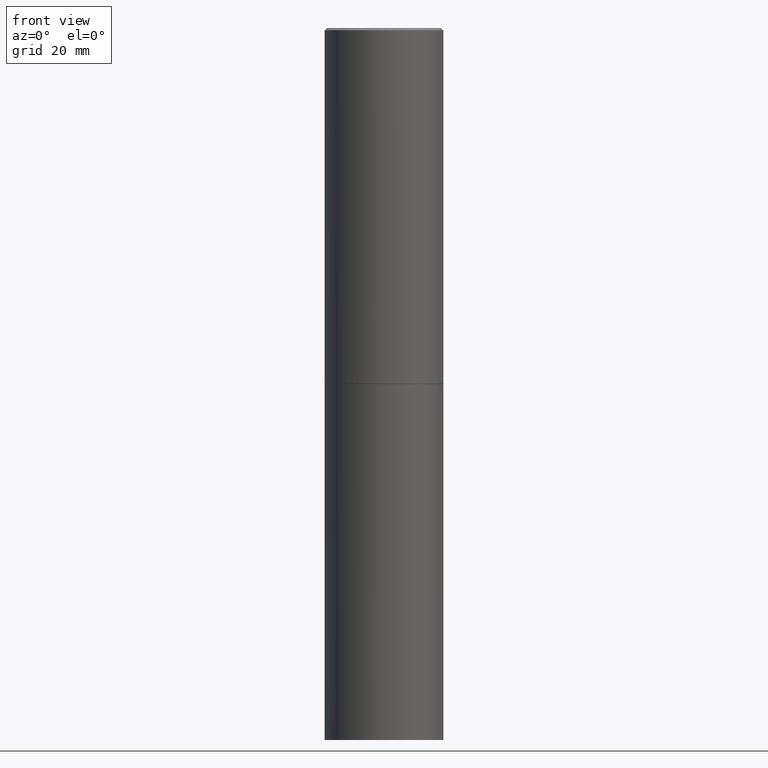
[diagram: clean part render]
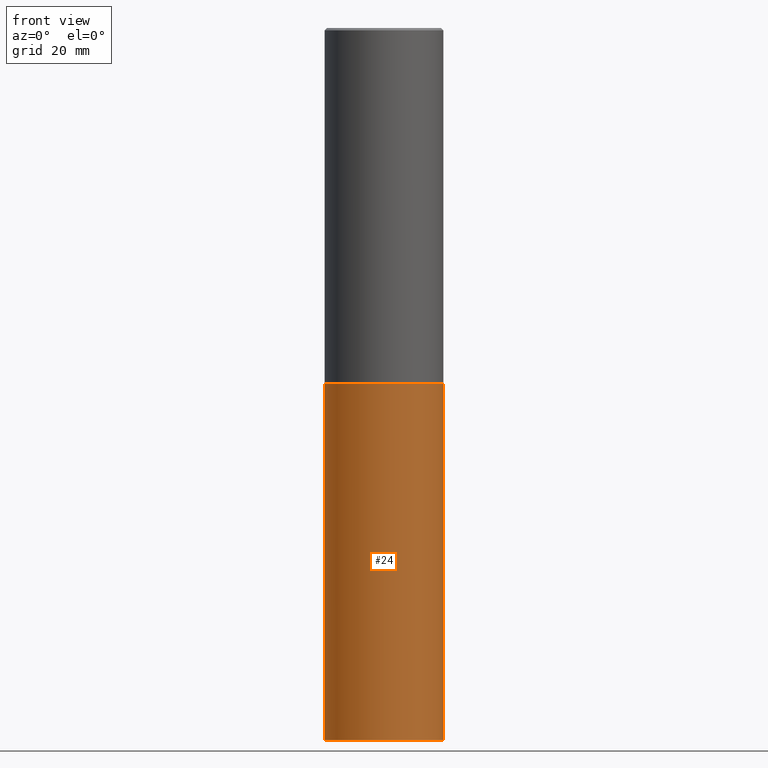
[diagram: same view with one face highlighted and labeled with its STEP entity id]
A machine part, front view. The second image highlights one B-rep face of the part: STEP entity #24.
In plain terms, the highlighted cylindrical surface (partial cylindrical patch) has radius 12.5006 mm, axis along (-0, 0, 1).
Its self-contained STEP definition (entity closure, byte-faithful):
#4 = DIRECTION ( 'NONE',  ( -2.445468806185136597E-29, 3.491481338843145583E-15, 1.000000000000000000 ) ) ;
#24 = ADVANCED_FACE ( 'NONE', ( #189 ), #47, .T. ) ;
#26 = LINE ( 'NONE', #347, #74 ) ;
#32 = DIRECTION ( 'NONE',  ( 1.000000000000000000, -6.982962677686265922E-15, 0.000000000000000000 ) ) ;
#47 = CYLINDRICAL_SURFACE ( 'NONE', #284, 0.4921499999999999764 ) ;
#55 = DIRECTION ( 'NONE',  ( 1.000000000000000000, -6.982962677686265922E-15, 0.000000000000000000 ) ) ;
#56 = EDGE_LOOP ( 'NONE', ( #326, #357, #224, #278 ) ) ;
#62 = CARTESIAN_POINT ( 'NONE',  ( -0.4921499999999999764, -1.196718392382684217E-14, -2.952700000000000102 ) ) ;
#63 = EDGE_CURVE ( 'NONE', #76, #184, #287, .T. ) ;
#64 = VERTEX_POINT ( 'NONE', #366 ) ;
#74 = VECTOR ( 'NONE', #260, 39.37007874015748143 ) ;
#76 = VERTEX_POINT ( 'NONE', #337 ) ;
#107 = CARTESIAN_POINT ( 'NONE',  ( 7.220735744022852519E-29, -1.030929694920215502E-14, -2.952700000000000102 ) ) ;
#124 = DIRECTION ( 'NONE',  ( -2.445468806185136597E-29, 3.491481338843145583E-15, 1.000000000000000000 ) ) ;
#138 = DIRECTION ( 'NONE',  ( -2.445468806185136597E-29, 3.491481338843145583E-15, 1.000000000000000000 ) ) ;
#154 = CARTESIAN_POINT ( 'NONE',  ( 0.4921499999999999764, -3.436665081823295777E-15, 2.399810400207969603E-29 ) ) ;
#165 = DIRECTION ( 'NONE',  ( 1.000000000000000000, -6.982962677686265922E-15, 4.876176775795935793E-29 ) ) ;
#174 = CIRCLE ( 'NONE', #180, 0.4921499999999999764 ) ;
#180 = AXIS2_PLACEMENT_3D ( 'NONE', #107, #4, #32 ) ;
#183 = EDGE_CURVE ( 'NONE', #64, #217, #26, .T. ) ;
#184 = VERTEX_POINT ( 'NONE', #239 ) ;
#189 = FACE_OUTER_BOUND ( 'NONE', #56, .T. ) ;
#206 = EDGE_CURVE ( 'NONE', #217, #184, #174, .T. ) ;
#217 = VERTEX_POINT ( 'NONE', #62 ) ;
#224 = ORIENTED_EDGE ( 'NONE', *, *, #63, .T. ) ;
#236 = EDGE_CURVE ( 'NONE', #64, #76, #240, .T. ) ;
#239 = CARTESIAN_POINT ( 'NONE',  ( 0.4921499999999999764, -1.374596203102545079E-14, -2.952700000000000102 ) ) ;
#240 = CIRCLE ( 'NONE', #269, 0.4921499999999999764 ) ;
#249 = DIRECTION ( 'NONE',  ( -2.445468806185136877E-29, 3.491481338843145188E-15, 1.000000000000000000 ) ) ;
#260 = DIRECTION ( 'NONE',  ( -2.445468806185136877E-29, 3.491481338843145188E-15, 1.000000000000000000 ) ) ;
#269 = AXIS2_PLACEMENT_3D ( 'NONE', #316, #138, #55 ) ;
#278 = ORIENTED_EDGE ( 'NONE', *, *, #206, .F. ) ;
#284 = AXIS2_PLACEMENT_3D ( 'NONE', #358, #124, #165 ) ;
#287 = LINE ( 'NONE', #154, #313 ) ;
#313 = VECTOR ( 'NONE', #249, 39.37007874015748143 ) ;
#316 = CARTESIAN_POINT ( 'NONE',  ( 1.444171603492632270E-28, -2.061894304653819197E-14, -5.905499999999999972 ) ) ;
#326 = ORIENTED_EDGE ( 'NONE', *, *, #183, .F. ) ;
#337 = CARTESIAN_POINT ( 'NONE',  ( 0.4921499999999999764, -2.405560812836148932E-14, -5.905499999999999972 ) ) ;
#347 = CARTESIAN_POINT ( 'NONE',  ( -0.4921499999999999764, 3.496936074043332897E-15, -2.420853904668951509E-29 ) ) ;
#357 = ORIENTED_EDGE ( 'NONE', *, *, #236, .T. ) ;
#358 = CARTESIAN_POINT ( 'NONE',  ( 0.000000000000000000, 0.000000000000000000, 0.000000000000000000 ) ) ;
#366 = CARTESIAN_POINT ( 'NONE',  ( -0.4921499999999999764, -1.196718392382684217E-14, -5.905499999999999972 ) ) ;